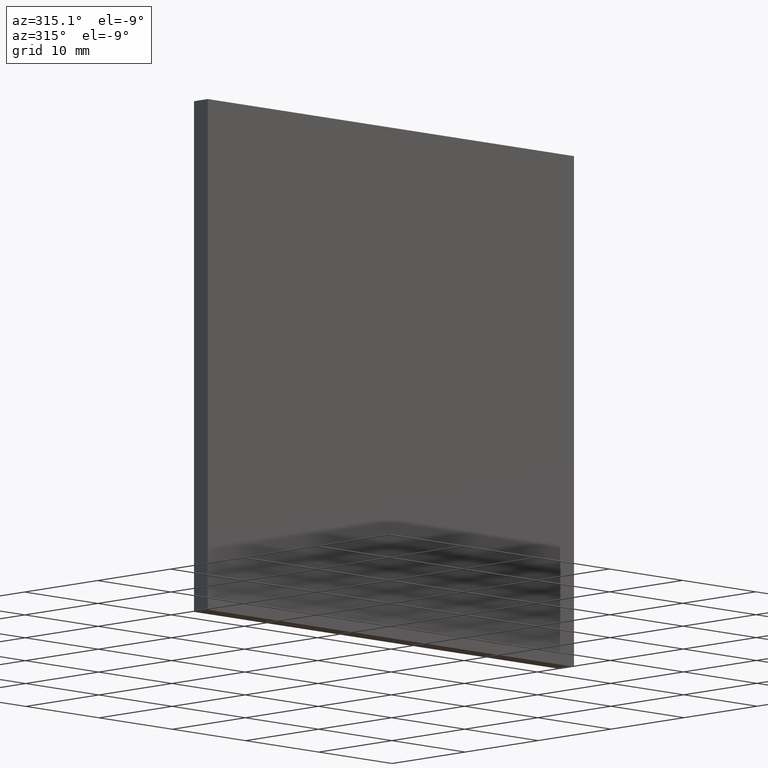
[diagram: clean part render]
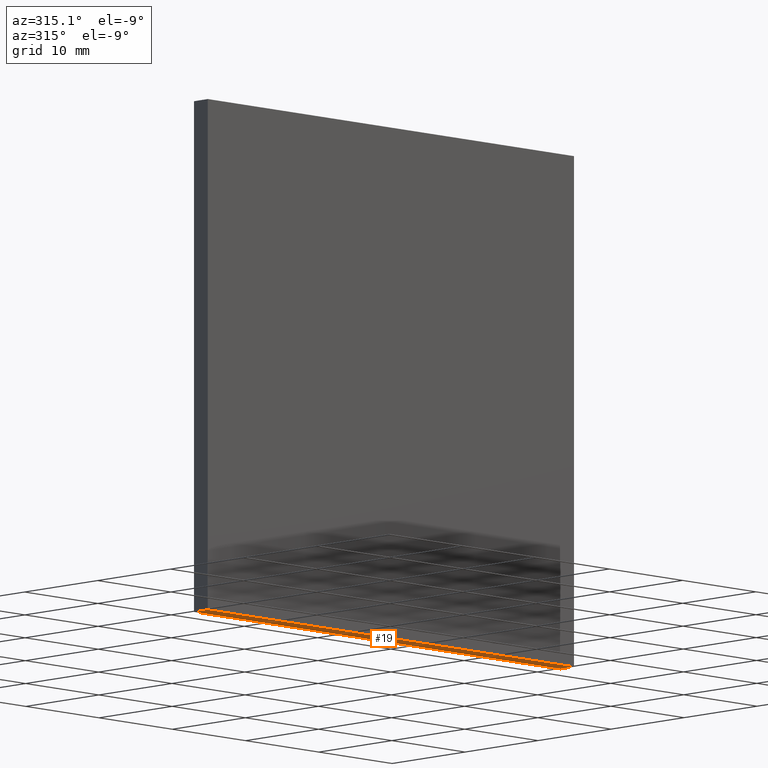
[diagram: same view with one face highlighted and labeled with its STEP entity id]
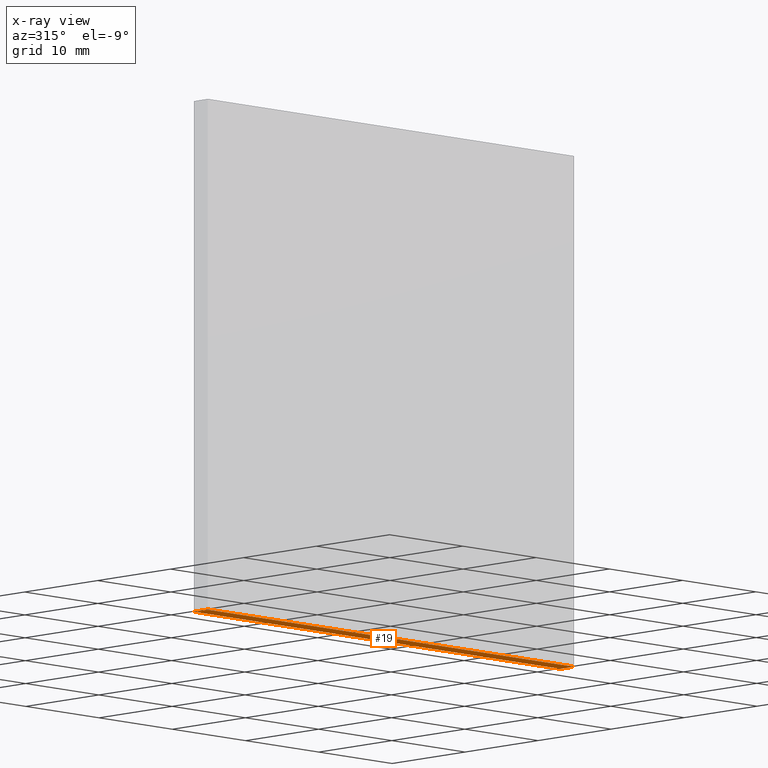
[diagram: x-ray of the same camera — body ghosted, the highlighted face saturated]
A machine part, auxiliary view. The second image highlights one B-rep face of the part: STEP entity #19.
The next image is the same camera in x-ray: the body ghosted, the highlighted face saturated — about 0% of this face is hidden behind the body in this view.
In plain terms, the highlighted planar face has unit normal (0, 0, 1).
Its self-contained STEP definition (entity closure, byte-faithful):
#4 = DIRECTION ( 'NONE',  ( -0.0000000000000000000, -1.000000000000000000, -0.0000000000000000000 ) ) ;
#10 = VECTOR ( 'NONE', #162, 1000.000000000000000 ) ;
#19 = ADVANCED_FACE ( 'NONE', ( #59 ), #68, .F. ) ;
#26 = ORIENTED_EDGE ( 'NONE', *, *, #176, .T. ) ;
#27 = CARTESIAN_POINT ( 'NONE',  ( -25.00000000000000000, 0.0000000000000000000, -25.00000000000000400 ) ) ;
#42 = LINE ( 'NONE', #132, #142 ) ;
#49 = EDGE_LOOP ( 'NONE', ( #76, #116, #113, #26 ) ) ;
#59 = FACE_OUTER_BOUND ( 'NONE', #49, .T. ) ;
#63 = VECTOR ( 'NONE', #103, 1000.000000000000000 ) ;
#64 = VERTEX_POINT ( 'NONE', #69 ) ;
#68 = PLANE ( 'NONE',  #70 ) ;
#69 = CARTESIAN_POINT ( 'NONE',  ( -25.00000000000000000, 1.889999999999999900, -25.00000000000000400 ) ) ;
#70 = AXIS2_PLACEMENT_3D ( 'NONE', #93, #78, #98 ) ;
#71 = VERTEX_POINT ( 'NONE', #102 ) ;
#72 = CARTESIAN_POINT ( 'NONE',  ( -25.00000000000000000, 1.889999999999999900, -25.00000000000000400 ) ) ;
#76 = ORIENTED_EDGE ( 'NONE', *, *, #152, .T. ) ;
#78 = DIRECTION ( 'NONE',  ( 0.0000000000000000000, 0.0000000000000000000, 1.000000000000000000 ) ) ;
#93 = CARTESIAN_POINT ( 'NONE',  ( -25.00000000000000000, 1.889999999999999900, -25.00000000000000400 ) ) ;
#98 = DIRECTION ( 'NONE',  ( 1.000000000000000000, 0.0000000000000000000, -0.0000000000000000000 ) ) ;
#102 = CARTESIAN_POINT ( 'NONE',  ( -25.00000000000000000, 0.0000000000000000000, -25.00000000000000400 ) ) ;
#103 = DIRECTION ( 'NONE',  ( -1.000000000000000000, -0.0000000000000000000, -0.0000000000000000000 ) ) ;
#104 = VERTEX_POINT ( 'NONE', #133 ) ;
#106 = LINE ( 'NONE', #72, #10 ) ;
#113 = ORIENTED_EDGE ( 'NONE', *, *, #123, .F. ) ;
#116 = ORIENTED_EDGE ( 'NONE', *, *, #164, .F. ) ;
#121 = LINE ( 'NONE', #27, #63 ) ;
#123 = EDGE_CURVE ( 'NONE', #134, #64, #106, .T. ) ;
#132 = CARTESIAN_POINT ( 'NONE',  ( -25.00000000000000000, 1.889999999999999900, -25.00000000000000400 ) ) ;
#133 = CARTESIAN_POINT ( 'NONE',  ( 25.00000000000000000, 0.0000000000000000000, -25.00000000000000400 ) ) ;
#134 = VERTEX_POINT ( 'NONE', #151 ) ;
#142 = VECTOR ( 'NONE', #4, 1000.000000000000000 ) ;
#151 = CARTESIAN_POINT ( 'NONE',  ( 25.00000000000000000, 1.889999999999999900, -25.00000000000000400 ) ) ;
#152 = EDGE_CURVE ( 'NONE', #104, #71, #121, .T. ) ;
#162 = DIRECTION ( 'NONE',  ( -1.000000000000000000, -0.0000000000000000000, -0.0000000000000000000 ) ) ;
#163 = DIRECTION ( 'NONE',  ( -0.0000000000000000000, -1.000000000000000000, -0.0000000000000000000 ) ) ;
#164 = EDGE_CURVE ( 'NONE', #64, #71, #42, .T. ) ;
#176 = EDGE_CURVE ( 'NONE', #134, #104, #187, .T. ) ;
#187 = LINE ( 'NONE', #190, #194 ) ;
#190 = CARTESIAN_POINT ( 'NONE',  ( 25.00000000000000000, 1.889999999999999900, -25.00000000000000400 ) ) ;
#194 = VECTOR ( 'NONE', #163, 1000.000000000000000 ) ;